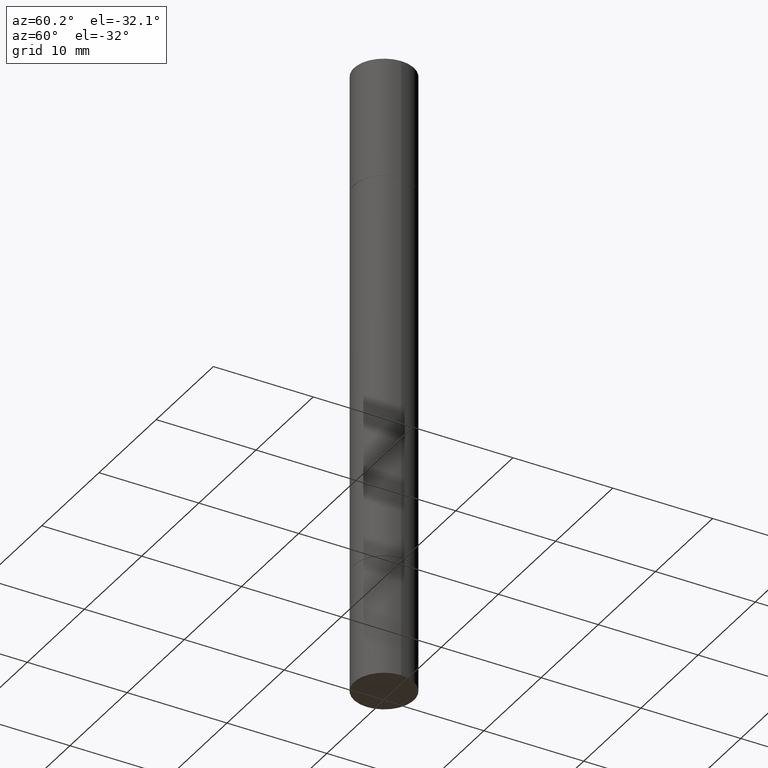
[diagram: clean part render]
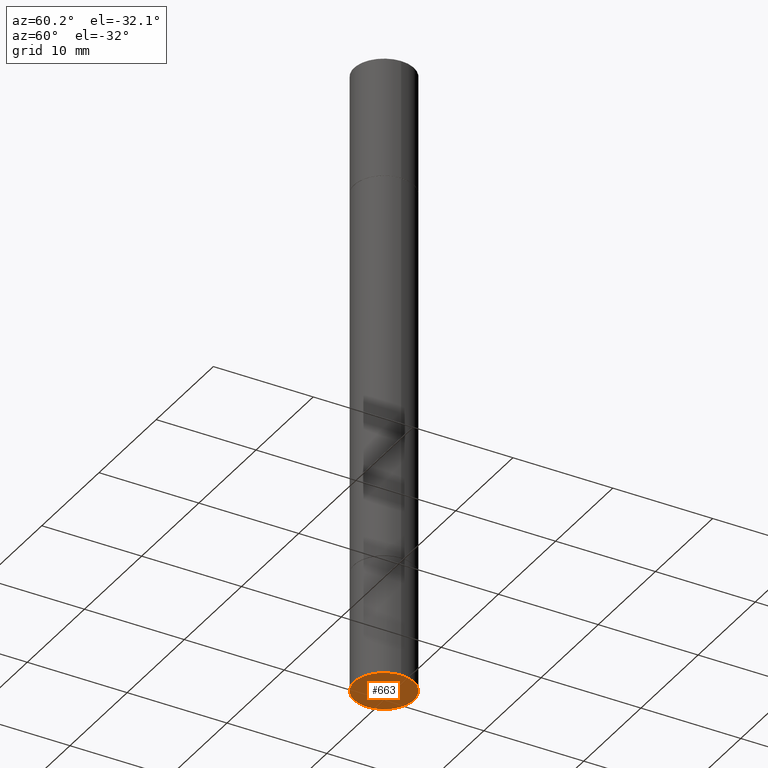
[diagram: same view with one face highlighted and labeled with its STEP entity id]
A machine part, auxiliary view. The second image highlights one B-rep face of the part: STEP entity #663.
In plain terms, the highlighted planar face has unit normal (0, -0, -1).
Its self-contained STEP definition (entity closure, byte-faithful):
#5 = CIRCLE ( 'NONE', #286, 0.1180999999999999966 ) ;
#9 = VERTEX_POINT ( 'NONE', #351 ) ;
#15 = CARTESIAN_POINT ( 'NONE',  ( 8.246878922348086105E-16, 0.1180999999999913369, -2.480300000000001059 ) ) ;
#109 = AXIS2_PLACEMENT_3D ( 'NONE', #15, #126, #432 ) ;
#126 = DIRECTION ( 'NONE',  ( 2.438088387897960049E-29, -3.491481338843145188E-15, -1.000000000000000000 ) ) ;
#190 = EDGE_CURVE ( 'NONE', #424, #9, #558, .T. ) ;
#215 = FACE_OUTER_BOUND ( 'NONE', #380, .T. ) ;
#267 = AXIS2_PLACEMENT_3D ( 'NONE', #389, #604, #339 ) ;
#286 = AXIS2_PLACEMENT_3D ( 'NONE', #478, #538, #431 ) ;
#322 = PLANE ( 'NONE',  #109 ) ;
#339 = DIRECTION ( 'NONE',  ( 1.000000000000000000, -6.982962677686273021E-15, 0.000000000000000000 ) ) ;
#351 = CARTESIAN_POINT ( 'NONE',  ( -0.1180999999999999966, -6.996082301565225720E-15, -2.480300000000000171 ) ) ;
#364 = CARTESIAN_POINT ( 'NONE',  ( 0.1180999999999999966, -9.484609056967403598E-15, -2.480300000000000171 ) ) ;
#380 = EDGE_LOOP ( 'NONE', ( #638, #674 ) ) ;
#389 = CARTESIAN_POINT ( 'NONE',  ( 6.065496279980994755E-29, -8.659921164732655335E-15, -2.480300000000000171 ) ) ;
#424 = VERTEX_POINT ( 'NONE', #364 ) ;
#428 = EDGE_CURVE ( 'NONE', #9, #424, #5, .T. ) ;
#431 = DIRECTION ( 'NONE',  ( 1.000000000000000000, -6.982962677686273021E-15, 0.000000000000000000 ) ) ;
#432 = DIRECTION ( 'NONE',  ( -1.000000000000000000, 6.982962677686265922E-15, -4.876176775795935793E-29 ) ) ;
#478 = CARTESIAN_POINT ( 'NONE',  ( 6.065496279980994755E-29, -8.659921164732655335E-15, -2.480300000000000171 ) ) ;
#538 = DIRECTION ( 'NONE',  ( -2.445468806185136597E-29, 3.491481338843145583E-15, 1.000000000000000000 ) ) ;
#558 = CIRCLE ( 'NONE', #267, 0.1180999999999999966 ) ;
#604 = DIRECTION ( 'NONE',  ( -2.445468806185136597E-29, 3.491481338843145583E-15, 1.000000000000000000 ) ) ;
#638 = ORIENTED_EDGE ( 'NONE', *, *, #190, .F. ) ;
#663 = ADVANCED_FACE ( 'NONE', ( #215 ), #322, .T. ) ;
#674 = ORIENTED_EDGE ( 'NONE', *, *, #428, .F. ) ;